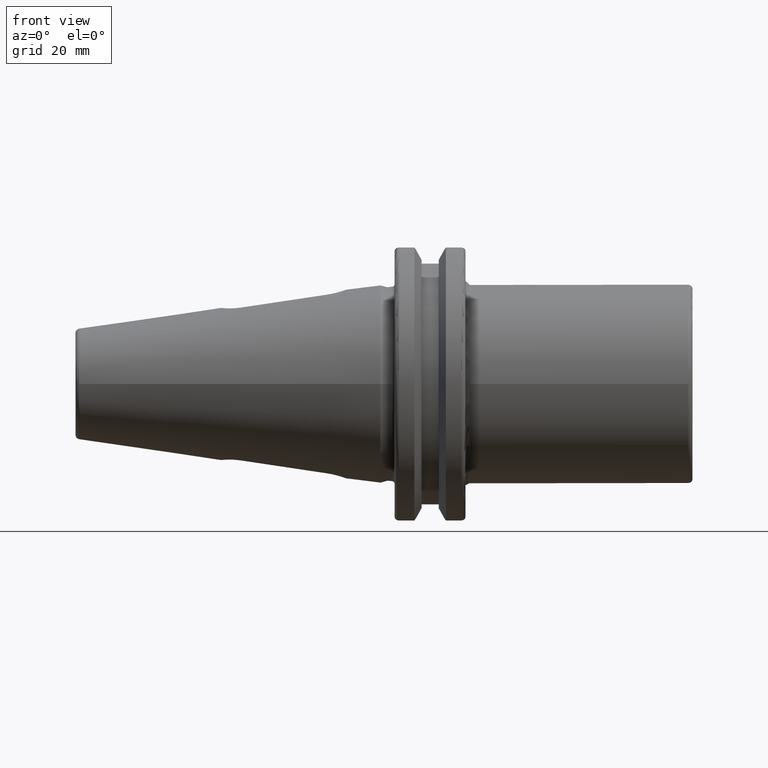
[diagram: clean part render]
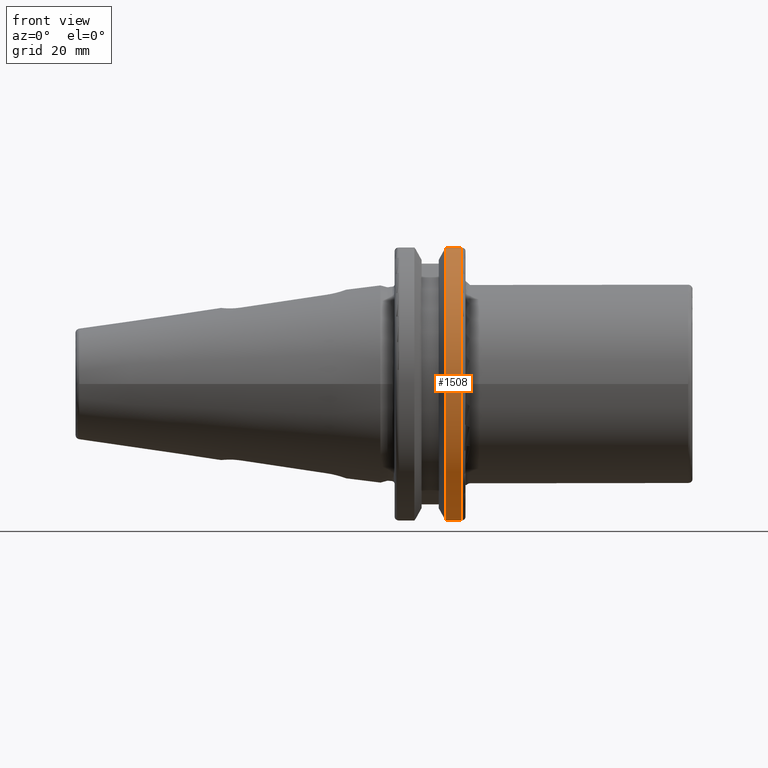
[diagram: same view with one face highlighted and labeled with its STEP entity id]
A machine part, front view. The second image highlights one B-rep face of the part: STEP entity #1508.
In plain terms, the highlighted cylindrical surface (partial cylindrical patch) has radius 31.75 mm, axis along (1, 0, 0).
Its self-contained STEP definition (entity closure, byte-faithful):
#111=CYLINDRICAL_SURFACE('',#1636,31.75);
#226=FACE_OUTER_BOUND('',#314,.T.);
#314=EDGE_LOOP('',(#1340,#1341,#1342,#1343));
#435=LINE('',#3211,#540);
#436=LINE('',#3217,#541);
#540=VECTOR('',#1936,10.);
#541=VECTOR('',#1939,10.);
#580=CIRCLE('',#1612,31.75);
#587=CIRCLE('',#1637,31.75);
#710=VERTEX_POINT('',#3036);
#711=VERTEX_POINT('',#3045);
#742=VERTEX_POINT('',#3210);
#743=VERTEX_POINT('',#3216);
#903=EDGE_CURVE('',#710,#711,#580,.T.);
#952=EDGE_CURVE('',#711,#742,#435,.T.);
#954=EDGE_CURVE('',#743,#710,#436,.T.);
#955=EDGE_CURVE('',#743,#742,#587,.T.);
#1340=ORIENTED_EDGE('',*,*,#903,.F.);
#1341=ORIENTED_EDGE('',*,*,#954,.F.);
#1342=ORIENTED_EDGE('',*,*,#955,.T.);
#1343=ORIENTED_EDGE('',*,*,#952,.F.);
#1508=ADVANCED_FACE('',(#226),#111,.T.);
#1612=AXIS2_PLACEMENT_3D('',#3046,#1863,#1864);
#1636=AXIS2_PLACEMENT_3D('',#3215,#1937,#1938);
#1637=AXIS2_PLACEMENT_3D('',#3218,#1940,#1941);
#1863=DIRECTION('center_axis',(1.,0.,0.));
#1864=DIRECTION('ref_axis',(0.,-1.,1.60812264967664E-16));
#1936=DIRECTION('',(-1.,0.,0.));
#1937=DIRECTION('center_axis',(1.,0.,0.));
#1938=DIRECTION('ref_axis',(0.,-1.,1.22464679914735E-16));
#1939=DIRECTION('',(1.,0.,0.));
#1940=DIRECTION('center_axis',(1.,0.,0.));
#1941=DIRECTION('ref_axis',(0.,0.,-1.));
#3036=CARTESIAN_POINT('',(18.05,-8.67204822802685,30.5427254764662));
#3045=CARTESIAN_POINT('',(18.05,-8.67204822802685,-30.5427254764662));
#3046=CARTESIAN_POINT('Origin',(18.05,0.,0.));
#3210=CARTESIAN_POINT('',(14.6531667690756,-8.67204822802685,-30.5427254764662));
#3211=CARTESIAN_POINT('',(16.8515833845378,-8.67204822802685,-30.5427254764662));
#3215=CARTESIAN_POINT('Origin',(16.8515833845378,0.,0.));
#3216=CARTESIAN_POINT('',(14.6531667690756,-8.67204822802685,30.5427254764662));
#3217=CARTESIAN_POINT('',(16.8515833845378,-8.67204822802685,30.5427254764662));
#3218=CARTESIAN_POINT('Origin',(14.6531667690756,0.,0.));